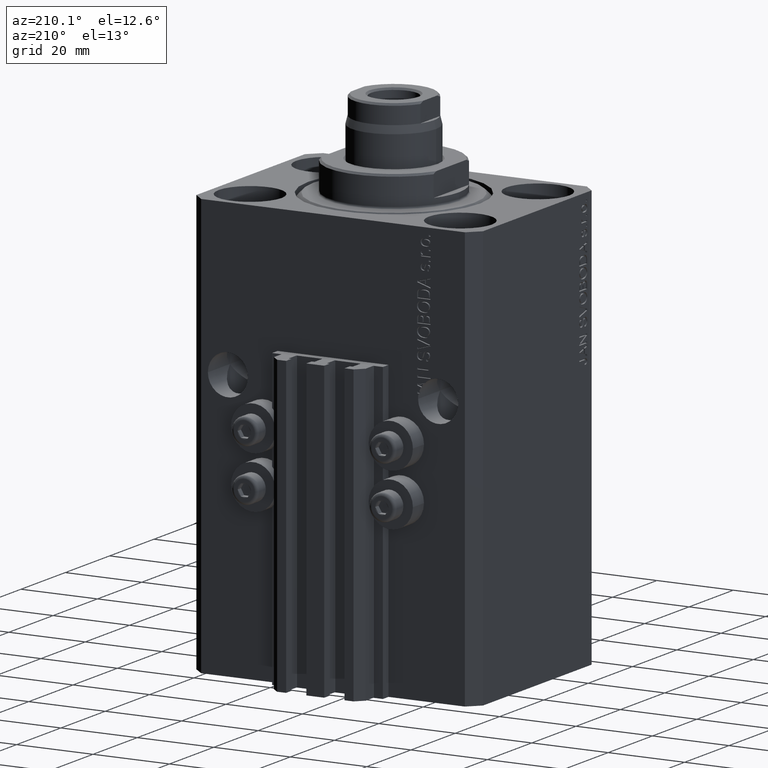
[diagram: clean part render]
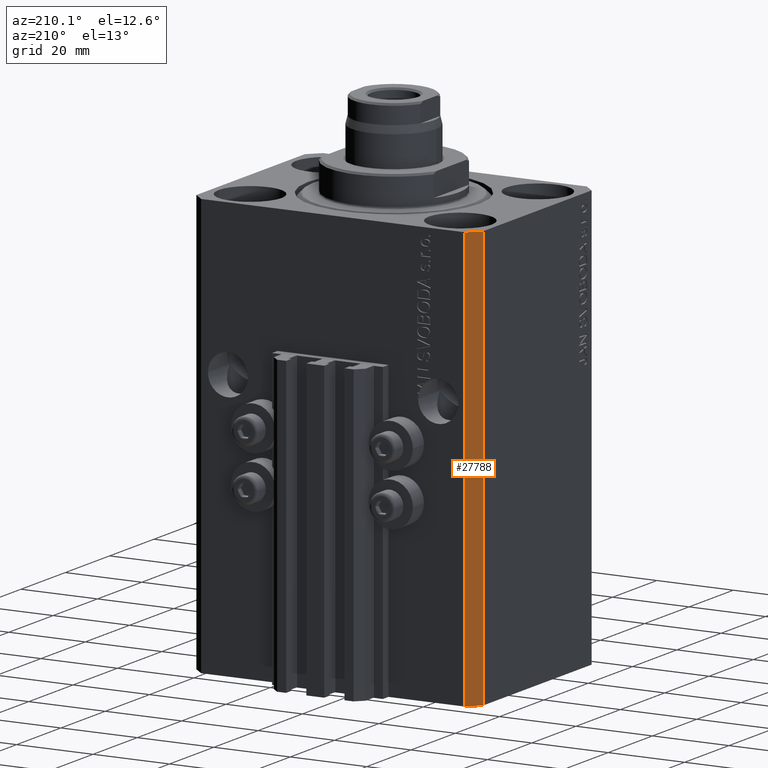
[diagram: same view with one face highlighted and labeled with its STEP entity id]
A machine part, auxiliary view. The second image highlights one B-rep face of the part: STEP entity #27788.
In plain terms, the highlighted planar face has unit normal (-0.7071, 0.7071, 0).
Its self-contained STEP definition (entity closure, byte-faithful):
#1505 = CARTESIAN_POINT ( 'NONE',  ( -34.49999999999999289, 27.50000000000000000, 0.000000000000000000 ) ) ;
#4382 = VERTEX_POINT ( 'NONE', #34587 ) ;
#4903 = DIRECTION ( 'NONE',  ( -0.7071067811865471286, -0.7071067811865479058, 0.000000000000000000 ) ) ;
#5379 = CARTESIAN_POINT ( 'NONE',  ( -34.49999999999999289, 27.50000000000000000, -110.0000000000000000 ) ) ;
#5667 = ORIENTED_EDGE ( 'NONE', *, *, #22562, .F. ) ;
#5995 = ORIENTED_EDGE ( 'NONE', *, *, #35651, .T. ) ;
#8175 = FACE_OUTER_BOUND ( 'NONE', #38532, .T. ) ;
#9572 = EDGE_CURVE ( 'NONE', #45172, #4382, #19016, .T. ) ;
#10510 = DIRECTION ( 'NONE',  ( -0.7071067811865471286, -0.7071067811865479058, 0.000000000000000000 ) ) ;
#12407 = CARTESIAN_POINT ( 'NONE',  ( -37.49999999999999289, 24.50000000000000000, -110.0000000000000000 ) ) ;
#14020 = LINE ( 'NONE', #42566, #38620 ) ;
#14197 = VERTEX_POINT ( 'NONE', #5379 ) ;
#14751 = ORIENTED_EDGE ( 'NONE', *, *, #22091, .T. ) ;
#17687 = ORIENTED_EDGE ( 'NONE', *, *, #9572, .F. ) ;
#19016 = LINE ( 'NONE', #29788, #25685 ) ;
#21764 = PLANE ( 'NONE',  #35054 ) ;
#22091 = EDGE_CURVE ( 'NONE', #14197, #44377, #14020, .T. ) ;
#22562 = EDGE_CURVE ( 'NONE', #14197, #45172, #45690, .T. ) ;
#25214 = VECTOR ( 'NONE', #27901, 1000.000000000000000 ) ;
#25685 = VECTOR ( 'NONE', #44058, 1000.000000000000000 ) ;
#27788 = ADVANCED_FACE ( 'NONE', ( #8175 ), #21764, .T. ) ;
#27901 = DIRECTION ( 'NONE',  ( 0.000000000000000000, 0.000000000000000000, 1.000000000000000000 ) ) ;
#29788 = CARTESIAN_POINT ( 'NONE',  ( -34.49999999999999289, 27.50000000000000000, 0.000000000000000000 ) ) ;
#32253 = VECTOR ( 'NONE', #33717, 1000.000000000000000 ) ;
#33717 = DIRECTION ( 'NONE',  ( 0.000000000000000000, 0.000000000000000000, 1.000000000000000000 ) ) ;
#34587 = CARTESIAN_POINT ( 'NONE',  ( -37.49999999999999289, 24.50000000000000000, 0.000000000000000000 ) ) ;
#35054 = AXIS2_PLACEMENT_3D ( 'NONE', #36950, #36030, #4903 ) ;
#35651 = EDGE_CURVE ( 'NONE', #44377, #4382, #44706, .T. ) ;
#36030 = DIRECTION ( 'NONE',  ( -0.7071067811865479058, 0.7071067811865471286, 0.000000000000000000 ) ) ;
#36950 = CARTESIAN_POINT ( 'NONE',  ( -34.49999999999999289, 27.50000000000000000, -110.0000000000000000 ) ) ;
#38532 = EDGE_LOOP ( 'NONE', ( #17687, #5667, #14751, #5995 ) ) ;
#38620 = VECTOR ( 'NONE', #10510, 1000.000000000000000 ) ;
#42566 = CARTESIAN_POINT ( 'NONE',  ( -34.49999999999999289, 27.50000000000000000, -110.0000000000000000 ) ) ;
#43490 = CARTESIAN_POINT ( 'NONE',  ( -37.49999999999999289, 24.50000000000000000, -110.0000000000000000 ) ) ;
#44058 = DIRECTION ( 'NONE',  ( -0.7071067811865471286, -0.7071067811865479058, 0.000000000000000000 ) ) ;
#44377 = VERTEX_POINT ( 'NONE', #43490 ) ;
#44706 = LINE ( 'NONE', #12407, #32253 ) ;
#45172 = VERTEX_POINT ( 'NONE', #1505 ) ;
#45690 = LINE ( 'NONE', #45914, #25214 ) ;
#45914 = CARTESIAN_POINT ( 'NONE',  ( -34.49999999999999289, 27.50000000000000000, -110.0000000000000000 ) ) ;